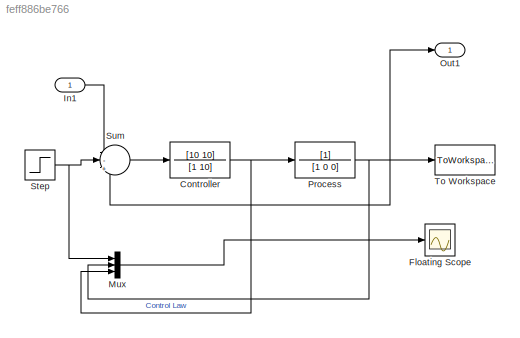
MODEL slx_feff886be766
KIND model
BLOCK [TransferFcn] Controller
  Denominator = [1 10]
  Numerator = [10 10]
BLOCK [Scope] Floating Scope
  DataFormat = StructureWithTime
  Floating = off
  NumInputPorts = 1
  Ports = [1]
  SampleTime = 0
  ShowLegends = off
BLOCK [Inport] In1
  IconDisplay = Port number
BLOCK [Mux] Mux
  DisplayOption = bar
  Inputs = 3
  Ports = [3, 1]
BLOCK [Outport] Out1
  IconDisplay = Port number
BLOCK [TransferFcn] Process
  Denominator = [1 0 0]
BLOCK [Step] Step
  SampleTime = 0
BLOCK [Sum] Sum
  IconShape = round
  InputSameDT = off
  Inputs = |-|+|-
  OutDataTypeStr = Inherit: Inherit via internal rule
  Ports = [3, 1]
  SaturateOnIntegerOverflow = off
BLOCK [ToWorkspace] To Workspace
  MaxDataPoints = inf
  Ports = [1]
  SampleTime = -1
  SaveFormat = Timeseries
  VariableName = simout
NET Controller:1 -> Mux:3, Process:1
LINE In1:1 -> Sum:1
LINE Mux:1 -> Floating Scope:1
NET Process:1 -> Mux:2, Out1:1, Sum:3, To Workspace:1
NET Step:1 -> Mux:1, Sum:2
LINE Sum:1 -> Controller:1
note: NET lines group one-source signal fan-out (src -> all destinations, sorted); 1:1 wires keep LINE
